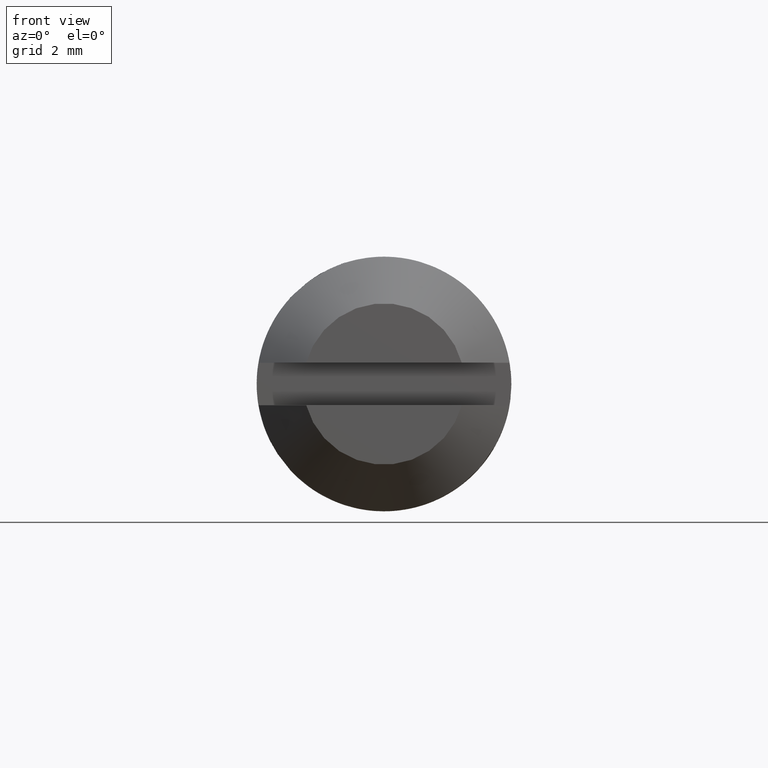
[diagram: clean part render]
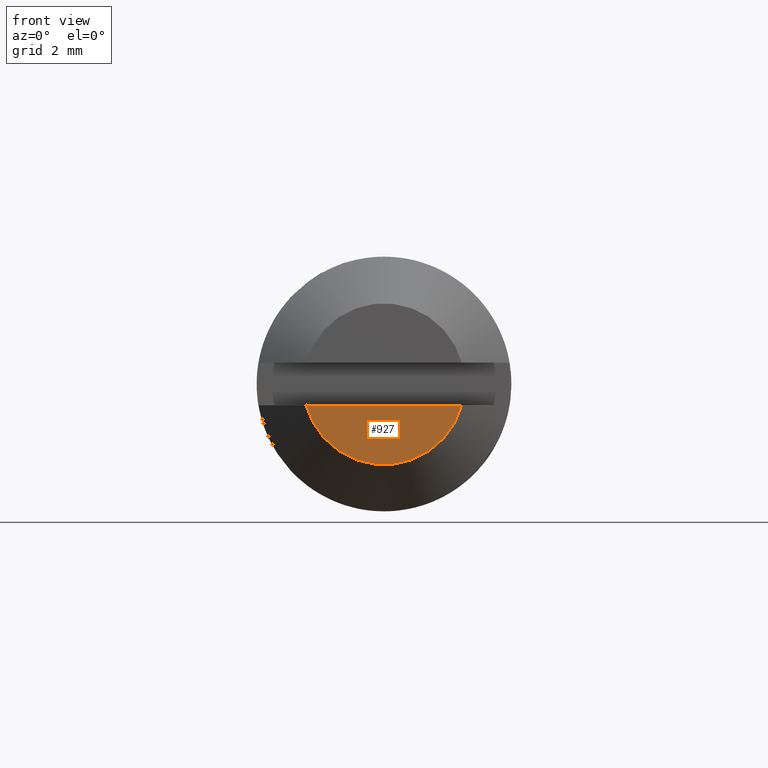
[diagram: same view with one face highlighted and labeled with its STEP entity id]
A machine part, front view. The second image highlights one B-rep face of the part: STEP entity #927.
In plain terms, the highlighted face is a freeform B-spline surface patch.
Its self-contained STEP definition (entity closure, byte-faithful):
#815=CARTESIAN_POINT('',(-1.833030277982315,-15.0,-0.500000000000000));
#816=VERTEX_POINT('',#815);
#826=CARTESIAN_POINT('',(1.833030277982315,-15.0,-0.500000000000000));
#827=VERTEX_POINT('',#826);
#828=CARTESIAN_POINT('',(1.833030277982315,-15.0,-0.500000000000000));
#829=CARTESIAN_POINT('',(-1.833030277982315,-15.0,-0.500000000000000));
#830=QUASI_UNIFORM_CURVE('',1,(#828,#829),.UNSPECIFIED.,.F.,.U.);
#831=EDGE_CURVE('',#827,#816,#830,.T.);
#904=CARTESIAN_POINT('',(-2.016149948135114,-15.0,-1.969929971002130));
#905=CARTESIAN_POINT('',(-2.016149948135114,-15.0,-0.430069966412991));
#906=CARTESIAN_POINT('',(2.016149817026572,-15.0,-1.969929971002130));
#907=CARTESIAN_POINT('',(2.016149817026572,-15.0,-0.430069966412991));
#908=B_SPLINE_SURFACE_WITH_KNOTS('',1,1,((#904,#906),(#905,#907)),.UNSPECIFIED.,.F.,.F.,.U.,(2,2),(2,2),(0.041708350593969,0.958291686658934),(0.0,4.032299765161686),.UNSPECIFIED.);
#909=ORIENTED_EDGE('',*,*,#831,.T.);
#910=CARTESIAN_POINT('',(-1.833030277982335,-15.0,-0.500000000000005));
#911=CARTESIAN_POINT('',(-1.451148970069346,-15.000000000000005,-1.900000000000001));
#912=CARTESIAN_POINT('',(0.0,-15.0,-1.900000000000001));
#913=CARTESIAN_POINT('',(1.451148970069345,-15.000000000000005,-1.900000000000001));
#914=CARTESIAN_POINT('',(1.833030277982334,-15.0,-0.500000000000006));
#922=(BOUNDED_CURVE()B_SPLINE_CURVE(2,(#910,#911,#912,#913,#914),.UNSPECIFIED.,.F.,.U.)B_SPLINE_CURVE_WITH_KNOTS((3,2,3),(0.0,0.500000000000000,1.0),.UNSPECIFIED.)CURVE()GEOMETRIC_REPRESENTATION_ITEM()RATIONAL_B_SPLINE_CURVE((1.0,0.794719414239027,1.0,0.794719414239027,1.0))REPRESENTATION_ITEM(''));
#923=EDGE_CURVE('',#816,#827,#922,.T.);
#924=ORIENTED_EDGE('',*,*,#923,.T.);
#925=EDGE_LOOP('',(#909,#924));
#926=FACE_OUTER_BOUND('',#925,.T.);
#927=ADVANCED_FACE('',(#926),#908,.F.);